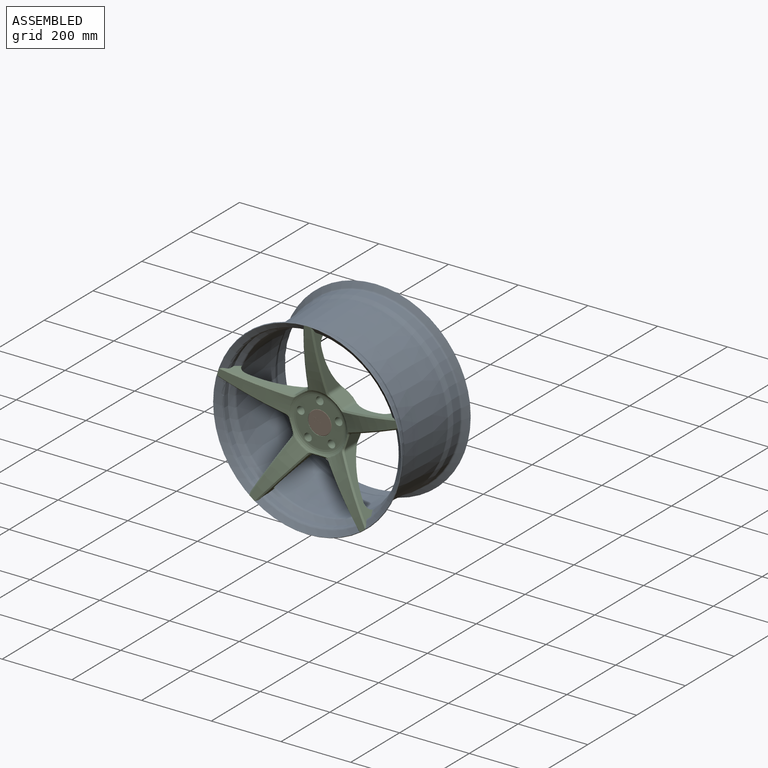
[diagram: assembled view]
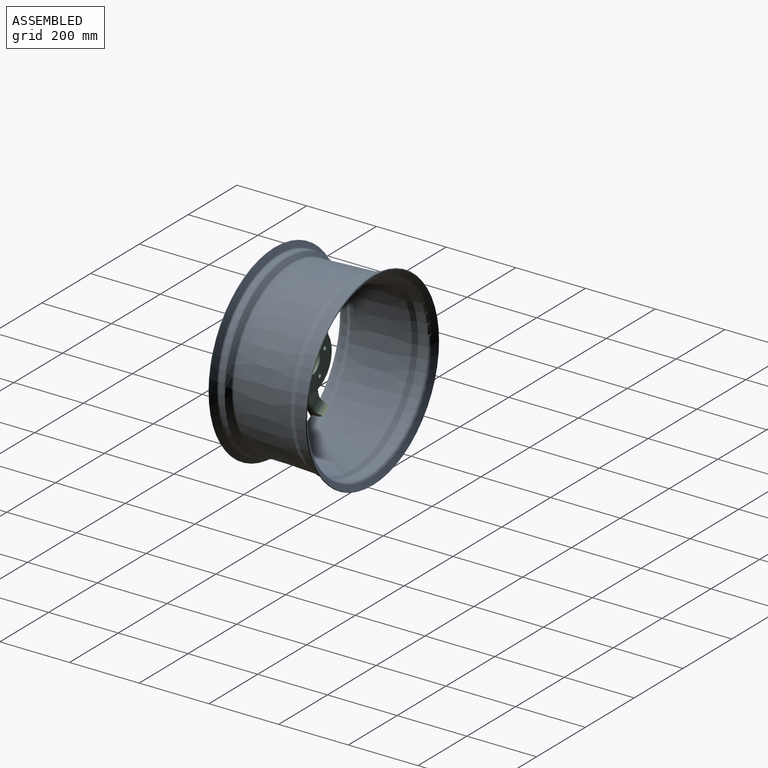
[diagram: assembled view, second angle]
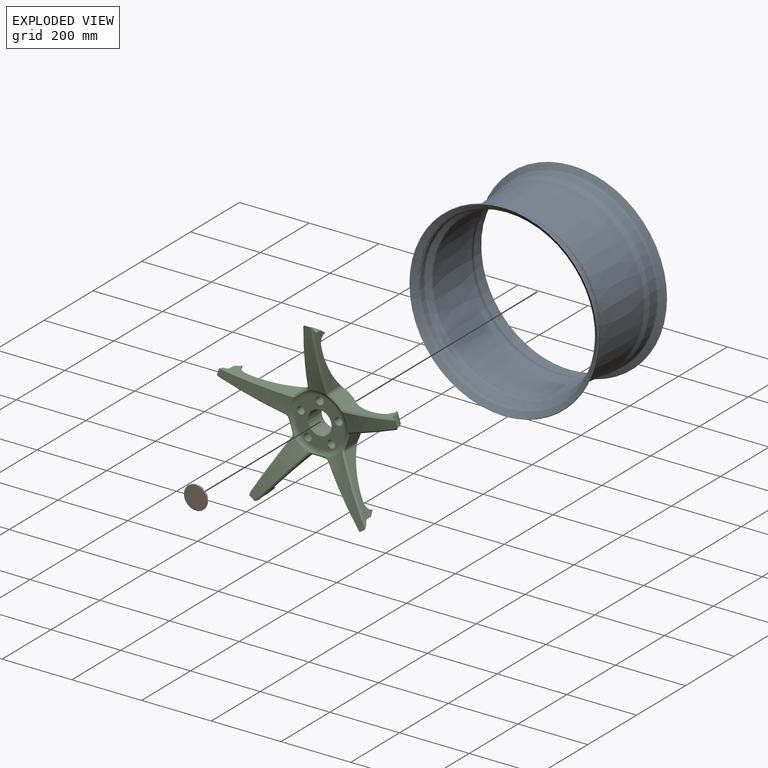
[diagram: exploded view]
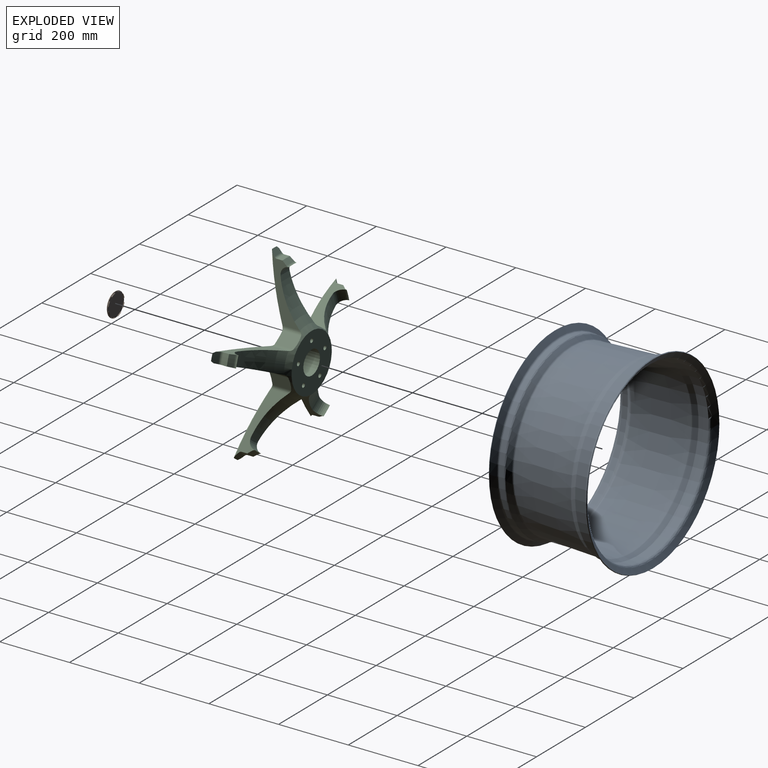
[diagram: exploded view, second angle]
ASSEMBLY  parts=3 mates=3
PART A: 26 faces, bbox 563.6x282.8x563.6 mm
  f0: cone r=271.25mm half-angle=52.7deg, axis (0,-1,0), area 30736.2mm2, adj f1,f25
  f1: cone r=271.25mm half-angle=37.3deg, axis (0,1,0), area 4316.6mm2, adj f0,f2
  f2: cone r=269.71mm half-angle=52.7deg, axis (0,-1,0), area 30556.8mm2, adj f1,f3
  f3: torus R=260.35mm, axis (0,1,0), area 12977.7mm2, adj f2,f4
  f4: cylinder r=251.46mm len=502.92mm, axis (0,1,0), area 24829.9mm2, adj f3,f5
  f5: cone r=251.46mm half-angle=39.7deg, axis (0,-1,0), area 24903.9mm2, adj f4,f6
  f6: torus R=248.01mm, axis (0,1,0), area 9851.6mm2, adj f5,f7
  f7: cone r=239.13mm half-angle=2.4deg, axis (0,1,0), area 255976.5mm2, adj f6,f8
  f8: torus R=255.1mm, axis (0,1,0), area 3952.3mm2, adj f7,f9
  f9: cone r=246.69mm half-angle=18.9deg, axis (0,1,0), area 23064.4mm2, adj f8,f10
  f10: cylinder r=251.46mm len=502.92mm, axis (0,1,0), area 45828.4mm2, adj f9,f11
  f11: torus R=260.35mm, axis (0,1,0), area 14328.7mm2, adj f10,f12
  f12: cone r=255.65mm half-angle=58.1deg, axis (0,1,0), area 30041.5mm2, adj f11,f13
  f13: cone r=272.41mm half-angle=31.9deg, axis (0,-1,0), area 4336.8mm2, adj f12,f14
  f14: cone r=257mm half-angle=58.1deg, axis (0,1,0), area 30194.6mm2, adj f13,f15
  f15: torus R=260.35mm, axis (0,1,0), area 10320.8mm2, adj f14,f16
  f16: cylinder r=254mm len=508mm, axis (0,1,0), area 45280.7mm2, adj f15,f17
  f17: torus R=247.65mm, axis (0,1,0), area 3336.8mm2, adj f16,f18
  f18: cone r=249.1mm half-angle=18.9deg, axis (0,1,0), area 22277.2mm2, adj f17,f19
  f19: torus R=255.1mm, axis (0,1,0), area 2851.6mm2, adj f18,f20
  f20: cone r=241.67mm half-angle=2.4deg, axis (0,1,0), area 258653.4mm2, adj f19,f21
  f21: torus R=248.01mm, axis (0,1,0), area 7105.9mm2, adj f20,f22
  f22: cone r=252.53mm half-angle=39.7deg, axis (0,-1,0), area 22913.8mm2, adj f21,f23
  f23: torus R=247.65mm, axis (0,1,0), area 7012.3mm2, adj f22,f24
  f24: cylinder r=254mm len=508mm, axis (0,1,0), area 22884.3mm2, adj f23,f25
  f25: torus R=260.35mm, axis (0,1,0), area 9350.4mm2, adj f0,f24
PART B: 117 faces, bbox 68x68x5.6 mm
  f0: plane 65.46x65.46mm, normal (0,0,1), area 3252.9mm2, adj f43,f60,f61,f62,f63,f64,f65,f66
  f1: cylinder r=32mm len=12.8mm, axis (0,0,1), area 42.1mm2, adj f2,f42,f45,f59
  f2: cone r=33.07mm half-angle=54deg, axis (0,0,1), area 18.7mm2, adj f1,f3,f45,f59
  f3: cylinder r=33.07mm len=13.22mm, axis (0,0,1), area 9.1mm2, adj f2,f4,f45,f59
  f4: plane 13.31x5.89mm, normal (0,0,1), area 7.3mm2, adj f3,f5,f45,f59
  f5: cylinder r=32.56mm len=13.02mm, axis (0,0,1), area 22.9mm2, adj f4,f42,f45,f59
  f6: cylinder r=32mm len=12.8mm, axis (0,0,1), area 42.1mm2, adj f7,f42,f56,f58
  f7: cone r=33.07mm half-angle=54deg, axis (0,0,1), area 18.7mm2, adj f6,f8,f56,f58
  f8: cylinder r=33.07mm len=13.22mm, axis (0,0,1), area 9.1mm2, adj f7,f9,f56,f58
  f9: plane 13.31x5.89mm, normal (0,0,1), area 7.3mm2, adj f8,f10,f56,f58
  f10: cylinder r=32.56mm len=13.02mm, axis (0,0,1), area 22.9mm2, adj f9,f42,f56,f58
  f11: cylinder r=32mm len=12.8mm, axis (0,0,1), area 42.1mm2, adj f12,f42,f54,f57
  f12: cone r=33.07mm half-angle=54deg, axis (0,0,1), area 18.7mm2, adj f11,f13,f54,f57
  f13: cylinder r=33.07mm len=13.22mm, axis (0,0,1), area 9.1mm2, adj f12,f14,f54,f57
  f14: plane 13.31x5.89mm, normal (0,0,1), area 7.3mm2, adj f13,f15,f54,f57
  f15: cylinder r=32.56mm len=13.02mm, axis (0,0,1), area 22.9mm2, adj f14,f42,f54,f57
  f16: cylinder r=32mm len=12.8mm, axis (0,0,1), area 42.1mm2, adj f17,f42,f52,f55
  f17: cone r=33.07mm half-angle=54deg, axis (0,0,1), area 18.7mm2, adj f16,f18,f52,f55
  f18: cylinder r=33.07mm len=13.22mm, axis (0,0,1), area 9.1mm2, adj f17,f19,f52,f55
  f19: plane 13.31x5.89mm, normal (0,0,1), area 7.3mm2, adj f18,f20,f52,f55
  f20: cylinder r=32.56mm len=13.02mm, axis (0,0,1), area 22.9mm2, adj f19,f42,f52,f55
  f21: cylinder r=32mm len=12.8mm, axis (0,0,1), area 42.1mm2, adj f22,f42,f50,f53
  f22: cone r=33.07mm half-angle=54deg, axis (0,0,1), area 18.7mm2, adj f21,f23,f50,f53
  f23: cylinder r=33.07mm len=13.22mm, axis (0,0,1), area 9.1mm2, adj f22,f24,f50,f53
  f24: plane 13.31x5.89mm, normal (0,0,1), area 7.3mm2, adj f23,f25,f50,f53
  f25: cylinder r=32.56mm len=13.02mm, axis (0,0,1), area 22.9mm2, adj f24,f42,f50,f53
  f26: cylinder r=32mm len=12.8mm, axis (0,0,1), area 42.1mm2, adj f27,f42,f48,f51
  f27: cone r=33.07mm half-angle=54deg, axis (0,0,1), area 18.7mm2, adj f26,f28,f48,f51
  f28: cylinder r=33.07mm len=13.22mm, axis (0,0,1), area 9.1mm2, adj f27,f29,f48,f51
  f29: plane 13.31x5.89mm, normal (0,0,1), area 7.3mm2, adj f28,f30,f48,f51
  f30: cylinder r=32.56mm len=13.02mm, axis (0,0,1), area 22.9mm2, adj f29,f42,f48,f51
  f31: cylinder r=32mm len=12.8mm, axis (0,0,1), area 42.1mm2, adj f32,f42,f46,f49
  f32: cone r=33.07mm half-angle=54deg, axis (0,0,1), area 18.7mm2, adj f31,f33,f46,f49
  f33: cylinder r=33.07mm len=13.22mm, axis (0,0,1), area 9.1mm2, adj f32,f34,f46,f49
  f34: plane 13.31x5.89mm, normal (0,0,1), area 7.3mm2, adj f33,f35,f46,f49
  f35: cylinder r=32.56mm len=13.02mm, axis (0,0,1), area 22.9mm2, adj f34,f42,f46,f49
  f36: cylinder r=32mm len=12.8mm, axis (0,0,1), area 42.1mm2, adj f37,f42,f44,f47
  f37: cone r=33.07mm half-angle=54deg, axis (0,0,1), area 18.7mm2, adj f36,f38,f44,f47
  f38: cylinder r=33.07mm len=13.22mm, axis (0,0,1), area 9.1mm2, adj f37,f39,f44,f47
  f39: plane 13.31x5.89mm, normal (0,0,1), area 7.3mm2, adj f38,f40,f44,f47
  f40: cylinder r=32.56mm len=13.02mm, axis (0,0,1), area 22.9mm2, adj f39,f42,f44,f47
  f41: cylinder r=34mm len=68mm, axis (0,0,-1), area 271.3mm2, adj f42,f43
  f42: plane 68x68mm, normal (0,0,-1), area 3569mm2, adj f1,f5,f6,f10,f11,f15,f16,f20
  f43: cone r=32.73mm half-angle=45deg, axis (0,0,-1), area 376.5mm2, adj f0,f41
  f44: plane 3.02x0.87mm, normal (0.57,0.82,0), area 2mm2, adj f36,f37,f38,f39,f40,f42
  f45: plane 3.02x0.87mm, normal (-0.82,-0.57,0), area 2mm2, adj f1,f2,f3,f4,f5,f42
  f46: plane 3.02x1.05mm, normal (-0.17,0.98,0), area 2mm2, adj f31,f32,f33,f34,f35,f42
  f47: plane 3.02x1.05mm, normal (-0.17,-0.98,0), area 2mm2, adj f36,f37,f38,f39,f40,f42
  f48: plane 3.02x0.87mm, normal (-0.82,0.57,0), area 2mm2, adj f26,f27,f28,f29,f30,f42
  f49: plane 3.02x0.87mm, normal (0.57,-0.82,0), area 2mm2, adj f31,f32,f33,f34,f35,f42
  f50: plane 3.02x1.05mm, normal (-0.98,-0.17,0), area 2mm2, adj f21,f22,f23,f24,f25,f42
  f51: plane 3.02x1.05mm, normal (0.98,-0.17,0), area 2mm2, adj f26,f27,f28,f29,f30,f42
  f52: plane 3.02x0.87mm, normal (-0.57,-0.82,0), area 2mm2, adj f16,f17,f18,f19,f20,f42
  f53: plane 3.02x0.87mm, normal (0.82,0.57,0), area 2mm2, adj f21,f22,f23,f24,f25,f42
  f54: plane 3.02x1.05mm, normal (0.17,-0.98,0), area 2mm2, adj f11,f12,f13,f14,f15,f42
  f55: plane 3.02x1.05mm, normal (0.17,0.98,0), area 2mm2, adj f16,f17,f18,f19,f20,f42
  f56: plane 3.02x0.87mm, normal (0.82,-0.57,0), area 2mm2, adj f6,f7,f8,f9,f10,f42
  f57: plane 3.02x0.87mm, normal (-0.57,0.82,0), area 2mm2, adj f11,f12,f13,f14,f15,f42
  f58: plane 3.02x1.05mm, normal (-0.98,0.17,0), area 2mm2, adj f6,f7,f8,f9,f10,f42
  f59: plane 3.02x1.05mm, normal (0.98,0.17,0), area 2mm2, adj f1,f2,f3,f4,f5,f42
  f60: plane 1.34x0.13mm, normal (0,1,0), area 0.2mm2, adj f0,f61,f67,f68
  f61: plane 10.35x0.13mm, normal (-1,0,0), area 1.3mm2, adj f0,f60,f62,f68
  f62: plane 3.66x0.13mm, normal (0,1,0), area 0.5mm2, adj f0,f61,f63,f68
  f63: plane 1.19x0.13mm, normal (-1,0,0), area 0.2mm2, adj f0,f62,f64,f68
  f64: plane 8.65x0.13mm, normal (0,-1,0), area 1.1mm2, adj f0,f63,f65,f68
  f65: plane 1.19x0.13mm, normal (1,0,0), area 0.2mm2, adj f0,f64,f66,f68
  f66: plane 3.66x0.13mm, normal (0,1,0), area 0.5mm2, adj f0,f65,f67,f68
  f67: plane 10.35x0.13mm, normal (1,0,0), area 1.3mm2, adj f0,f60,f66,f68
  f68: plane 11.54x8.65mm, normal (0,0,1), area 24.2mm2, adj f60,f61,f62,f63,f64,f65,f66,f67
  f69: extruded ~2.38x1.11mm, area 0.3mm2, adj f0,f70,f93,f94
  f70: extruded ~1.93x0.68mm, area 0.3mm2, adj f0,f69,f71,f94
  f71: extruded ~2.5x1.39mm, area 0.4mm2, adj f0,f70,f72,f94
  f72: extruded ~1.61x0.71mm, area 0.2mm2, adj f0,f71,f73,f94
  f73: extruded ~0.75x0.7mm, area 0.1mm2, adj f0,f72,f74,f94
  f74: extruded ~0.98x0.22mm, area 0.1mm2, adj f0,f73,f75,f94
  f75: extruded ~1.27x0.6mm, area 0.2mm2, adj f0,f74,f76,f94
  f76: extruded ~1.67x0.46mm, area 0.2mm2, adj f0,f75,f77,f94
  f77: extruded ~2.78x0.6mm, area 0.4mm2, adj f0,f76,f78,f94
  f78: plane 1.17x0.42mm, normal (-0.94,0.34,0), area 0.2mm2, adj f0,f77,f79,f94
  f79: extruded ~3.17x0.63mm, area 0.4mm2, adj f0,f78,f80,f94
  f80: extruded ~2.65x0.79mm, area 0.4mm2, adj f0,f79,f81,f94
  f81: extruded ~2.12x1mm, area 0.3mm2, adj f0,f80,f82,f94
  f82: extruded ~2.06x0.69mm, area 0.3mm2, adj f0,f81,f83,f94
  f83: extruded ~2.3x1.37mm, area 0.3mm2, adj f0,f82,f84,f94
  f84: extruded ~1.72x0.73mm, area 0.2mm2, adj f0,f83,f85,f94
  f85: extruded ~0.81x0.71mm, area 0.1mm2, adj f0,f84,f86,f94
  f86: extruded ~0.98x0.24mm, area 0.1mm2, adj f0,f85,f87,f94
  f87: extruded ~1.42x0.68mm, area 0.2mm2, adj f0,f86,f88,f94
  f88: extruded ~2.02x0.51mm, area 0.3mm2, adj f0,f87,f89,f94
  f89: extruded ~1.66x0.17mm, area 0.2mm2, adj f0,f88,f90,f94
  f90: extruded ~1.55x0.47mm, area 0.2mm2, adj f0,f89,f91,f94
  f91: plane 1.29x0.13mm, normal (1,0,0), area 0.2mm2, adj f0,f90,f92,f94
  f92: extruded ~3.16x0.53mm, area 0.4mm2, adj f0,f91,f93,f94
  f93: extruded ~3x0.85mm, area 0.4mm2, adj f0,f69,f92,f94
  f94: plane 11.87x7.26mm, normal (0,0,1), area 30.8mm2, adj f69,f70,f71,f72,f73,f74,f75,f76
  f95: plane 6.43x0.13mm, normal (0,1,0), area 0.8mm2, adj f0,f96,f106,f107
  f96: plane 1.2x0.13mm, normal (-1,0,0), area 0.2mm2, adj f0,f95,f97,f107
  f97: plane 5.09x0.13mm, normal (0,-1,0), area 0.6mm2, adj f0,f96,f98,f107
  f98: plane 4.25x0.13mm, normal (-1,0,0), area 0.5mm2, adj f0,f97,f99,f107
  f99: plane 4.78x0.13mm, normal (0,1,0), area 0.6mm2, adj f0,f98,f100,f107
  f100: plane 1.19x0.13mm, normal (-1,0,0), area 0.2mm2, adj f0,f99,f101,f107
  f101: plane 4.78x0.13mm, normal (0,-1,0), area 0.6mm2, adj f0,f100,f102,f107
  f102: plane 3.72x0.13mm, normal (-1,0,0), area 0.5mm2, adj f0,f101,f103,f107
  f103: plane 5.09x0.13mm, normal (0,1,0), area 0.6mm2, adj f0,f102,f104,f107
  f104: plane 1.19x0.13mm, normal (-1,0,0), area 0.2mm2, adj f0,f103,f105,f107
  f105: plane 6.43x0.13mm, normal (0,-1,0), area 0.8mm2, adj f0,f104,f106,f107
  f106: plane 11.54x0.13mm, normal (1,0,0), area 1.5mm2, adj f0,f95,f105,f107
  f107: plane 11.54x6.43mm, normal (0,0,1), area 33.3mm2, adj f95,f96,f97,f98,f99,f100,f101,f102
  f108: plane 1.34x0.13mm, normal (0,1,0), area 0.2mm2, adj f0,f109,f115,f116
  f109: plane 10.35x0.13mm, normal (-1,0,0), area 1.3mm2, adj f0,f108,f110,f116
  f110: plane 3.66x0.13mm, normal (0,1,0), area 0.5mm2, adj f0,f109,f111,f116
  f111: plane 1.19x0.13mm, normal (-1,0,0), area 0.2mm2, adj f0,f110,f112,f116
  f112: plane 8.65x0.13mm, normal (0,-1,0), area 1.1mm2, adj f0,f111,f113,f116
  f113: plane 1.19x0.13mm, normal (1,0,0), area 0.2mm2, adj f0,f112,f114,f116
  f114: plane 3.66x0.13mm, normal (0,1,0), area 0.5mm2, adj f0,f113,f115,f116
  f115: plane 10.35x0.13mm, normal (1,0,0), area 1.3mm2, adj f0,f108,f114,f116
  f116: plane 11.54x8.65mm, normal (0,0,1), area 24.2mm2, adj f108,f109,f110,f111,f112,f113,f114,f115
PART C: 115 faces, bbox 541.7x244x541.5 mm
  f0: cylinder r=6mm len=21.76mm, axis (0,-1,0), area 820.4mm2, adj f7,f21
  f1: cone r=269.71mm half-angle=52.7deg, axis (0,-1,0), area 498.8mm2, adj f2,f13,f16,f17,f24,f25
  f2: torus R=350.52mm, axis (0,-1,0), area 6800.4mm2, adj f1,f3,f17,f18,f25,f26
  f3: torus R=87.63mm, axis (0,-1,0), area 181mm2, adj f2,f4,f18,f19,f26,f27
  f4: torus R=68.2mm, axis (0,-1,0), area 7761.4mm2, adj f3,f5,f19,f27,f31,f41,f49,f53
  f5: plane 136.4x136.4mm, normal (0,-1,0), area 9079.9mm2, adj f4,f6,f20,f42,f64,f86,f108
  f6: cylinder r=34mm len=68mm, axis (0,-1,0), area 11954.5mm2, adj f5,f7
  f7: plane 165.1x165.1mm, normal (0,1,0), area 17211.2mm2, adj f0,f6,f8,f28,f50,f72,f94
  f8: torus R=248.49mm, axis (0,-1,0), area 40187.1mm2, adj f7,f9,f14,f15,f16,f22,f23,f24
  f9: torus R=216.22mm, axis (0,-1,0), area 1386.1mm2, adj f8,f10,f16,f24
  f10: torus R=248.01mm, axis (0,-1,0), area 211.9mm2, adj f9,f11,f16,f24
  f11: cone r=251.46mm half-angle=39.7deg, axis (0,-1,0), area 503.1mm2, adj f10,f12,f16,f24
  f12: cylinder r=251.46mm len=30.32mm, axis (0,-1,0), area 476.8mm2, adj f11,f13,f16,f24
  f13: torus R=260.35mm, axis (0,-1,0), area 245mm2, adj f1,f12,f16,f24
  f14: cylinder r=12.7mm len=56.68mm, axis (0,1,0), area 557.4mm2, adj f8,f15,f16,f18
  f15: plane 56.13x31.69mm, normal (0.59,0,0.81), area 2122.6mm2, adj f8,f14,f19,f110,f114
  f16: plane 176.04x91.52mm, normal (1,0,0.09), area 4539mm2, adj f1,f8,f9,f10,f11,f12,f13,f14
  f17: bspline ~182.08x44.43mm, area 996.2mm2, adj f1,f2,f16,f18
  f18: bspline ~13.42x9.28mm, area 74.4mm2, adj f2,f3,f14,f17,f19
  f19: bspline ~19.25x16.12mm, area 96.1mm2, adj f3,f4,f15,f18,f114
  f20: cylinder r=11mm len=25.54mm, axis (0,-1,0), area 1765.1mm2, adj f5,f21
  f21: cone r=11.08mm half-angle=30deg, axis (0,-1,0), area 534.1mm2, adj f0,f20
  f22: cylinder r=12.7mm len=56.68mm, axis (0,1,0), area 557.4mm2, adj f8,f23,f24,f26
  f23: plane 56.13x31.69mm, normal (-0.59,0,0.81), area 2122.6mm2, adj f8,f22,f27,f37,f41
  f24: plane 176.04x91.52mm, normal (-1,0,0.09), area 4539mm2, adj f1,f8,f9,f10,f11,f12,f13,f22
  f25: bspline ~182.08x44.43mm, area 996.2mm2, adj f1,f2,f24,f26
  f26: bspline ~13.42x9.28mm, area 74.4mm2, adj f2,f3,f22,f25,f27
  f27: bspline ~19.25x16.12mm, area 96.1mm2, adj f3,f4,f23,f26,f41
  f28: cylinder r=6mm len=21.76mm, axis (0,-1,0), area 820.4mm2, adj f7,f43
  f29: cone r=269.71mm half-angle=52.7deg, axis (0,-1,0), area 498.8mm2, adj f30,f36,f38,f39,f46,f47
  f30: torus R=350.52mm, axis (0,-1,0), area 6800.4mm2, adj f29,f31,f39,f40,f47,f48
  f31: torus R=87.63mm, axis (0,-1,0), area 181mm2, adj f4,f30,f40,f41,f48,f49
  f32: torus R=216.22mm, axis (0,-1,0), area 1386.1mm2, adj f8,f33,f38,f46
  f33: torus R=248.01mm, axis (0,-1,0), area 211.9mm2, adj f32,f34,f38,f46
  f34: cone r=251.46mm half-angle=39.7deg, axis (0,-1,0), area 503.1mm2, adj f33,f35,f38,f46
  f35: cylinder r=251.46mm len=28.83mm, axis (0,-1,0), area 476.8mm2, adj f34,f36,f38,f46
  f36: torus R=260.35mm, axis (0,-1,0), area 245mm2, adj f29,f35,f38,f46
  f37: cylinder r=12.7mm len=56.68mm, axis (0,1,0), area 557.4mm2, adj f8,f23,f38,f40
  f38: plane 172.24x91.52mm, normal (0.22,0,0.97), area 4539mm2, adj f8,f29,f32,f33,f34,f35,f36,f37
  f39: bspline ~177.26x45.14mm, area 996.2mm2, adj f29,f30,f38,f40
  f40: bspline ~13.53x6.92mm, area 74.4mm2, adj f30,f31,f37,f39,f41
  f41: bspline ~19.51x15.91mm, area 96.1mm2, adj f4,f23,f27,f31,f40
  f42: cylinder r=11mm len=25.54mm, axis (0,-1,0), area 1765.1mm2, adj f5,f43
  f43: cone r=11.08mm half-angle=30deg, axis (0,-1,0), area 534.1mm2, adj f28,f42
  f44: cylinder r=12.7mm len=56.68mm, axis (0,1,0), area 557.4mm2, adj f8,f45,f46,f48
  f45: plane 56.13x37.22mm, normal (-0.95,0,-0.31), area 2122.6mm2, adj f8,f44,f49,f59,f63
  f46: plane 162.84x91.52mm, normal (-0.39,0,-0.92), area 4539mm2, adj f8,f29,f32,f33,f34,f35,f36,f44
  f47: bspline ~178.01x77.76mm, area 996.2mm2, adj f29,f30,f46,f48
  f48: bspline ~12x11.18mm, area 74.4mm2, adj f30,f31,f44,f47,f49
  f49: bspline ~19.65x10.32mm, area 96.1mm2, adj f4,f31,f45,f48,f63
  f50: cylinder r=6mm len=21.76mm, axis (0,-1,0), area 820.4mm2, adj f7,f65
  f51: cone r=269.71mm half-angle=52.7deg, axis (0,-1,0), area 498.8mm2, adj f52,f58,f60,f61,f68,f69
  f52: torus R=350.52mm, axis (0,-1,0), area 6800.4mm2, adj f51,f53,f61,f62,f69,f70
  f53: torus R=87.63mm, axis (0,-1,0), area 181mm2, adj f4,f52,f62,f63,f70,f71
  f54: torus R=216.22mm, axis (0,-1,0), area 1386.1mm2, adj f8,f55,f60,f68
  f55: torus R=248.01mm, axis (0,-1,0), area 211.9mm2, adj f54,f56,f60,f68
  f56: cone r=251.46mm half-angle=39.7deg, axis (0,-1,0), area 503.1mm2, adj f55,f57,f60,f68
  f57: cylinder r=251.46mm len=24.53mm, axis (0,-1,0), area 476.8mm2, adj f56,f58,f60,f68
  f58: torus R=260.35mm, axis (0,-1,0), area 245mm2, adj f51,f57,f60,f68
  f59: cylinder r=12.7mm len=56.68mm, axis (0,1,0), area 557.4mm2, adj f8,f45,f60,f62
  f60: plane 151.8x92.14mm, normal (-0.86,0,0.52), area 4539mm2, adj f8,f51,f54,f55,f56,f57,f58,f59
  f61: bspline ~156.96x97.56mm, area 996.2mm2, adj f51,f52,f60,f62
  f62: bspline ~13.46x7.35mm, area 74.4mm2, adj f52,f53,f59,f61,f63
  f63: bspline ~19.92x10.2mm, area 96.1mm2, adj f4,f45,f49,f53,f62
  f64: cylinder r=11mm len=25.54mm, axis (0,-1,0), area 1765.1mm2, adj f5,f65
  f65: cone r=11.08mm half-angle=30deg, axis (0,-1,0), area 534.1mm2, adj f50,f64
  f66: cylinder r=12.7mm len=56.68mm, axis (0,1,0), area 557.4mm2, adj f8,f67,f68,f70
  f67: plane 57.62x40.62mm, normal (0,0,-1), area 2122.6mm2, adj f8,f66,f71,f81,f85
  f68: plane 133.93x116.73mm, normal (0.75,0,-0.66), area 4539mm2, adj f8,f51,f54,f55,f56,f57,f58,f66
  f69: bspline ~140.43x121.51mm, area 996.2mm2, adj f51,f52,f68,f70
  f70: bspline ~12.29x9.4mm, area 74.4mm2, adj f52,f53,f66,f69,f71
  f71: bspline ~20.44x5.09mm, area 96.1mm2, adj f4,f53,f67,f70,f85
  f72: cylinder r=6mm len=21.76mm, axis (0,-1,0), area 820.4mm2, adj f7,f87
  f73: cone r=269.71mm half-angle=52.7deg, axis (0,-1,0), area 498.8mm2, adj f74,f80,f82,f83,f90,f91
  f74: torus R=350.52mm, axis (0,-1,0), area 6800.4mm2, adj f73,f75,f83,f84,f91,f92
  f75: torus R=87.63mm, axis (0,-1,0), area 181mm2, adj f4,f74,f84,f85,f92,f93
  f76: torus R=216.22mm, axis (0,-1,0), area 1386.1mm2, adj f8,f77,f82,f90
  f77: torus R=248.01mm, axis (0,-1,0), area 211.9mm2, adj f76,f78,f82,f90
  f78: cone r=251.46mm half-angle=39.7deg, axis (0,-1,0), area 503.1mm2, adj f77,f79,f82,f90
  f79: cylinder r=251.46mm len=24.53mm, axis (0,-1,0), area 476.8mm2, adj f78,f80,f82,f90
  f80: torus R=260.35mm, axis (0,-1,0), area 245mm2, adj f73,f79,f82,f90
  f81: cylinder r=12.7mm len=56.68mm, axis (0,1,0), area 557.4mm2, adj f8,f67,f82,f84
  f82: plane 133.93x116.73mm, normal (-0.75,0,-0.66), area 4539mm2, adj f8,f73,f76,f77,f78,f79,f80,f81
  f83: bspline ~140.43x121.51mm, area 996.2mm2, adj f73,f74,f82,f84
  f84: bspline ~12.29x9.4mm, area 74.4mm2, adj f74,f75,f81,f83,f85
  f85: bspline ~20.44x5.09mm, area 96.1mm2, adj f4,f67,f71,f75,f84
  f86: cylinder r=11mm len=25.54mm, axis (0,-1,0), area 1765.1mm2, adj f5,f87
  f87: cone r=11.08mm half-angle=30deg, axis (0,-1,0), area 534.1mm2, adj f72,f86
  f88: cylinder r=12.7mm len=56.68mm, axis (0,1,0), area 557.4mm2, adj f8,f89,f90,f92
  f89: plane 56.13x37.22mm, normal (0.95,0,-0.31), area 2122.6mm2, adj f8,f88,f93,f103,f107
  f90: plane 151.8x92.14mm, normal (0.86,0,0.52), area 4539mm2, adj f8,f73,f76,f77,f78,f79,f80,f88
  f91: bspline ~156.96x97.56mm, area 996.2mm2, adj f73,f74,f90,f92
  f92: bspline ~13.46x7.35mm, area 74.4mm2, adj f74,f75,f88,f91,f93
  f93: bspline ~19.92x10.2mm, area 96.1mm2, adj f4,f75,f89,f92,f107
  f94: cylinder r=6mm len=21.76mm, axis (0,-1,0), area 820.4mm2, adj f7,f109
  f95: cone r=269.71mm half-angle=52.7deg, axis (0,-1,0), area 498.8mm2, adj f96,f102,f104,f105,f111,f112
  f96: torus R=350.52mm, axis (0,-1,0), area 6800.4mm2, adj f95,f97,f105,f106,f112,f113
  f97: torus R=87.63mm, axis (0,-1,0), area 181mm2, adj f4,f96,f106,f107,f113,f114
  f98: torus R=216.22mm, axis (0,-1,0), area 1386.1mm2, adj f8,f99,f104,f111
  f99: torus R=248.01mm, axis (0,-1,0), area 211.9mm2, adj f98,f100,f104,f111
  f100: cone r=251.46mm half-angle=39.7deg, axis (0,-1,0), area 503.1mm2, adj f99,f101,f104,f111
  f101: cylinder r=251.46mm len=28.83mm, axis (0,-1,0), area 476.8mm2, adj f100,f102,f104,f111
  f102: torus R=260.35mm, axis (0,-1,0), area 245mm2, adj f95,f101,f104,f111
  f103: cylinder r=12.7mm len=56.68mm, axis (0,1,0), area 557.4mm2, adj f8,f89,f104,f106
  f104: plane 162.84x91.52mm, normal (0.39,0,-0.92), area 4539mm2, adj f8,f95,f98,f99,f100,f101,f102,f103
  f105: bspline ~169.56x74.16mm, area 996.2mm2, adj f95,f96,f104,f106
  f106: bspline ~12x11.18mm, area 74.4mm2, adj f96,f97,f103,f105,f107
  f107: bspline ~19.65x10.32mm, area 96.1mm2, adj f4,f89,f93,f97,f106
  f108: cylinder r=11mm len=25.54mm, axis (0,-1,0), area 1765.1mm2, adj f5,f109
  f109: cone r=11.08mm half-angle=30deg, axis (0,-1,0), area 534.1mm2, adj f94,f108
  f110: cylinder r=12.7mm len=56.68mm, axis (0,1,0), area 557.4mm2, adj f8,f15,f111,f113
  f111: plane 172.24x91.52mm, normal (-0.22,0,0.97), area 4539mm2, adj f8,f95,f98,f99,f100,f101,f102,f110
  f112: bspline ~177.26x45.14mm, area 996.2mm2, adj f95,f96,f111,f113
  f113: bspline ~13.53x7.55mm, area 74.4mm2, adj f96,f97,f110,f112,f114
  f114: bspline ~19.51x15.91mm, area 96.1mm2, adj f4,f15,f19,f97,f113
PLACE A t=(7.81,95.17,0.63)mm
PLACE B rot(axis=(1,0,0),90deg) t=(7.81,6.75,0.86)mm
PLACE C t=(7.81,95.17,0.63)mm
MATE fastened B.f0 <-> C.f1  axis (0,-1,0) through (7.81,4.21,0.63)mm
MATE cylindrical C.f1 <-> A.f0  axis (0,-1,0) through (7.81,32.19,0.63)mm
MATE fastened A.f0 <-> C.f1  axis (0,-1,0) through (7.81,-6.79,0.63)mm
